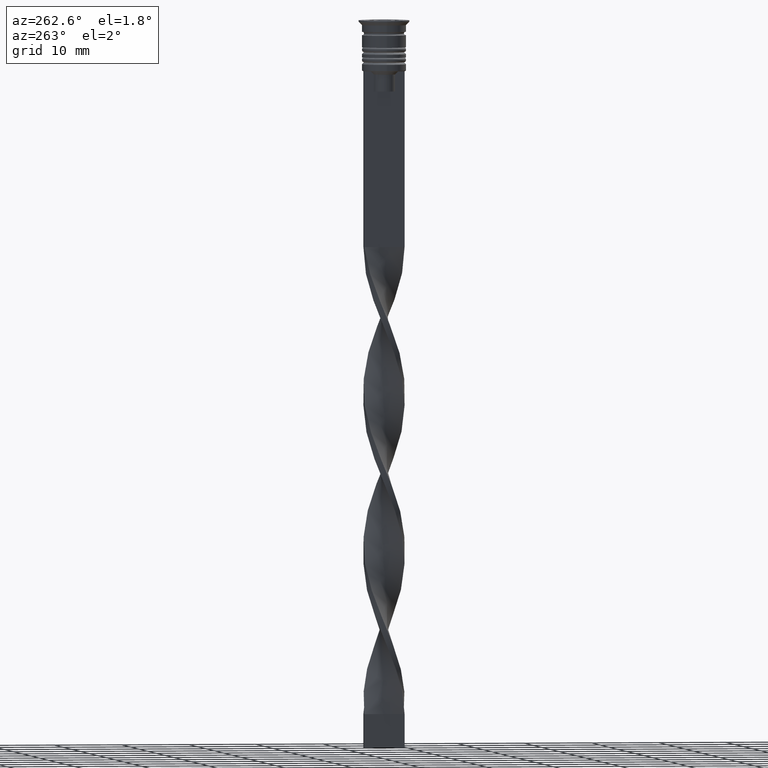
[diagram: clean part render]
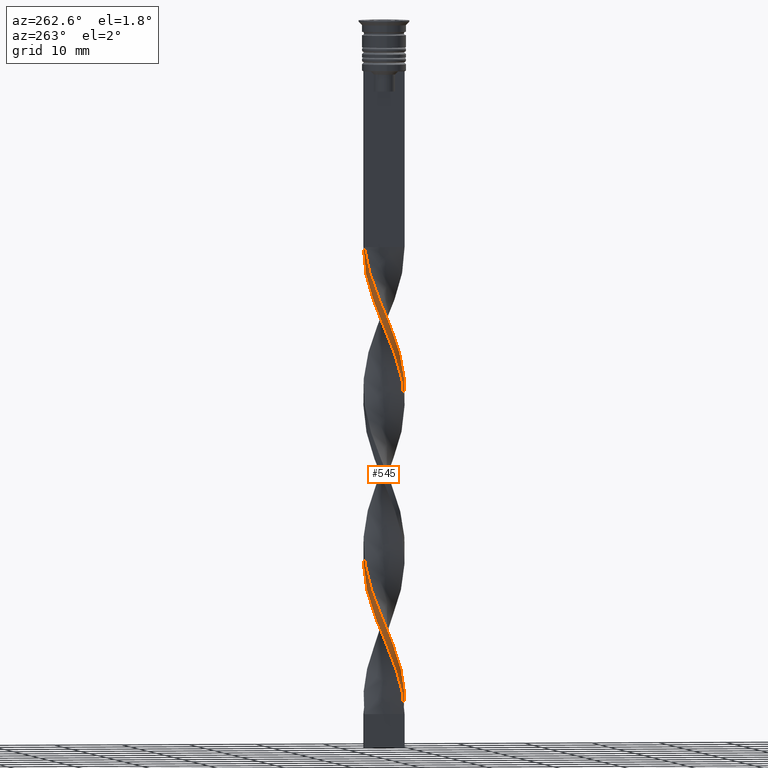
[diagram: same view with one face highlighted and labeled with its STEP entity id]
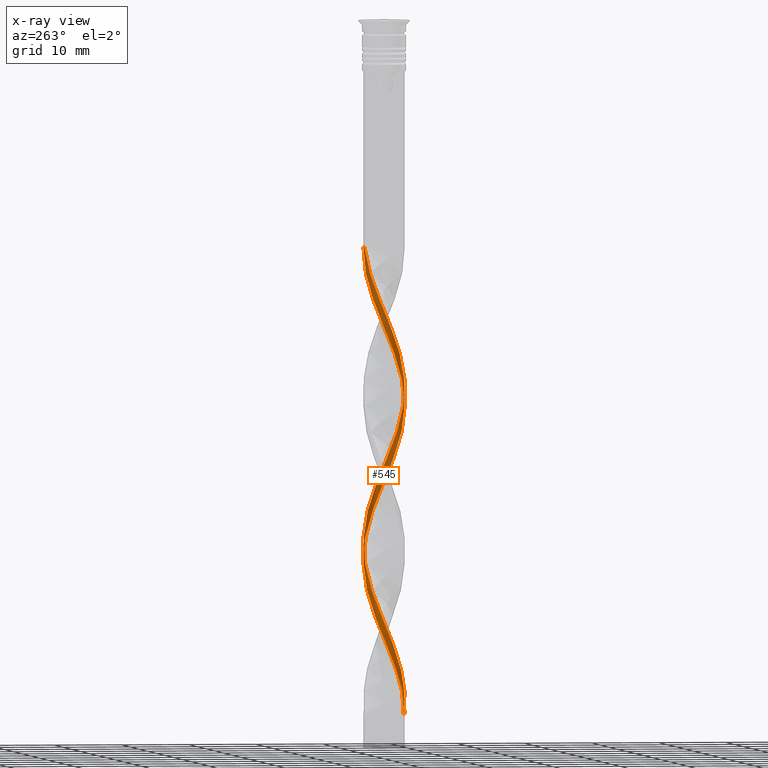
[diagram: x-ray of the same camera — body ghosted, the highlighted face saturated]
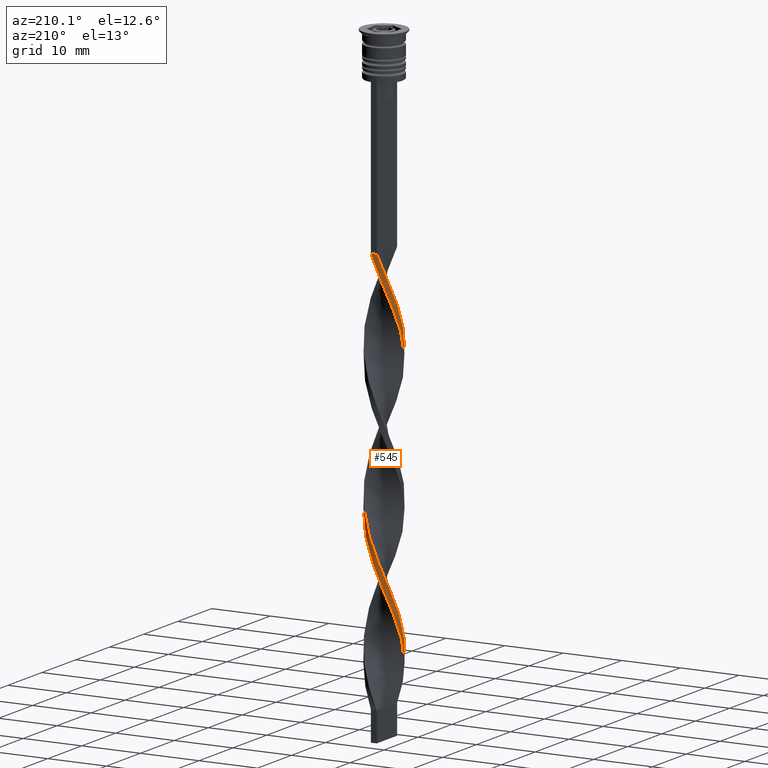
[diagram: same view with one face highlighted and labeled with its STEP entity id]
A machine part, auxiliary view. The second image highlights one B-rep face of the part: STEP entity #545.
The next image is the same camera in x-ray: the body ghosted, the highlighted face saturated — about 0% of this face is hidden behind the body in this view.
A second angle (auxiliary view) of the same face is appended — the face is thin or edge-on in the first view.
In plain terms, the highlighted face is a freeform B-spline surface patch.
Its self-contained STEP definition (entity closure, byte-faithful):
#1 = CARTESIAN_POINT ( 'NONE',  ( -2.813682533735953228, -1.212256617197150943, -92.76923076923075939 ) ) ;
#9 = CARTESIAN_POINT ( 'NONE',  ( -2.627746284534976606, 1.531322782470314836, -88.34615384615385381 ) ) ;
#18 = CARTESIAN_POINT ( 'NONE',  ( -2.917858282166500228, 0.8579644778149966289, -44.11538461538462030 ) ) ;
#31 =( BOUNDED_CURVE ( )  B_SPLINE_CURVE ( 2, ( #1935, #630, #2942, #2707, #865, #1915, #344, #74, #1383, #2208, #2927, #1413, #2173, #594, #1109, #1659, #917, #362, #95, #327, #2979, #2692, #2458, #2995, #2404, #1398, #144, #2155, #3193, #3231, #1128, #3176, #1625, #2442, #110, #125, #1951, #1161, #901, #2723, #1691, #393, #1430, #2223, #3246, #1967, #2285, #1756, #1984, #2300, #978, #2539, #3278, #3307, #2271, #3322, #681, #2806, #2253, #475, #1517, #219, #2553, #2029, #1742, #1729, #3012, #965, #931, #2522, #412, #1195, #171, #205, #998, #2016, #1256, #1241, #951 ),
 .UNSPECIFIED., .F., .T. ) 
 B_SPLINE_CURVE_WITH_KNOTS ( ( 3, 2, 2, 2, 2, 2, 2, 2, 2, 2, 2, 2, 2, 2, 2, 2, 2, 2, 2, 2, 2, 2, 2, 2, 2, 2, 2, 2, 2, 2, 2, 2, 2, 2, 2, 2, 2, 2, 2, 3 ),
 ( 0.000000000000000000, 0.01923076923076923184, 0.03846153846153846367, 0.05769230769230768857, 0.07692307692307692735, 0.09615384615384615918, 0.1153846153846153771, 0.1346153846153846090, 0.1538461538461538547, 0.1730769230769230449, 0.1923076923076923184, 0.2115384615384615363, 0.2307692307692307543, 0.2500000000000000000, 0.2692307692307692180, 0.2884615384615384359, 0.3076923076923077094, 0.3269230769230769273, 0.3461538461538460898, 0.3653846153846153633, 0.3846153846153846367, 0.4038461538461539102, 0.4230769230769230727, 0.4423076923076922906, 0.4615384615384615086, 0.4807692307692307820, 0.5000000000000000000, 0.5192307692307692735, 0.5384615384615384359, 0.5576923076923077094, 0.5769230769230768718, 0.5961538461538461453, 0.6153846153846154188, 0.6346153846153845812, 0.6538461538461538547, 0.6730769230769230171, 0.6923076923076921796, 0.7115384615384615641, 0.7307692307692307265, 0.7500000000000000000 ),
 .UNSPECIFIED. ) 
 CURVE ( )  GEOMETRIC_REPRESENTATION_ITEM ( )  RATIONAL_B_SPLINE_CURVE ( ( 1.000000000000000000, 0.9927088740980539727, 1.000000000000000000, 0.9927088740980539727, 1.000000000000000000, 0.9927088740980539727, 1.000000000000000000, 0.9927088740980539727, 1.000000000000000000, 0.9927088740980539727, 1.000000000000000000, 0.9927088740980539727, 1.000000000000000000, 0.9927088740980539727, 1.000000000000000000, 0.9927088740980539727, 1.000000000000000000, 0.9927088740980539727, 1.000000000000000000, 0.9927088740980539727, 1.000000000000000000, 0.9927088740980539727, 1.000000000000000000, 0.9927088740980539727, 1.000000000000000000, 0.9927088740980539727, 1.000000000000000000, 0.9927088740980539727, 1.000000000000000000, 0.9927088740980539727, 1.000000000000000000, 0.9927088740980539727, 1.000000000000000000, 0.9927088740980539727, 1.000000000000000000, 0.9927088740980539727, 1.000000000000000000, 0.9927088740980539727, 1.000000000000000000, 0.9927088740980539727, 1.000000000000000000, 0.9927088740980539727, 1.000000000000000000, 0.9927088740980539727, 1.000000000000000000, 0.9927088740980539727, 1.000000000000000000, 0.9927088740980539727, 1.000000000000000000, 0.9927088740980539727, 1.000000000000000000, 0.9927088740980539727, 1.000000000000000000, 0.9927088740980539727, 1.000000000000000000, 0.9927088740980539727, 1.000000000000000000, 0.9927088740980539727, 1.000000000000000000, 0.9927088740980539727, 1.000000000000000000, 0.9927088740980539727, 1.000000000000000000, 0.9927088740980539727, 1.000000000000000000, 0.9927088740980539727, 1.000000000000000000, 0.9927088740980539727, 1.000000000000000000, 0.9927088740980539727, 1.000000000000000000, 0.9927088740980539727, 1.000000000000000000, 0.9927088740980539727, 1.000000000000000000, 0.9927088740980539727, 1.000000000000000000, 0.9927088740980539727, 1.000000000000000000 ) ) 
 REPRESENTATION_ITEM ( '' )  );
#33 = CARTESIAN_POINT ( 'NONE',  ( -2.627746284534977050, -1.531322782470313948, -47.65384615384616041 ) ) ;
#39 = ORIENTED_EDGE ( 'NONE', *, *, #3143, .T. ) ;
#40 = CARTESIAN_POINT ( 'NONE',  ( 0.6006862186325140351, 3.004255577232739949, -76.84615384615386802 ) ) ;
#46 = CARTESIAN_POINT ( 'NONE',  ( -3.038394962421823386, 0.1347443962830582320, -45.88461538461538680 ) ) ;
#57 = CARTESIAN_POINT ( 'NONE',  ( -2.596021493184668572, -1.626975080790204364, -50.30769230769232081 ) ) ;
#63 = CARTESIAN_POINT ( 'NONE',  ( 2.917858282166500228, -0.8579644778149976281, -67.11538461538461320 ) ) ;
#66 = CARTESIAN_POINT ( 'NONE',  ( -1.203417901575699389, 2.793167620134377582, -35.26923076923077360 ) ) ;
#72 = CARTESIAN_POINT ( 'NONE',  ( -2.752983971046547129, -1.292702307246638815, -49.42307692307693401 ) ) ;
#74 = CARTESIAN_POINT ( 'NONE',  ( -2.596021493184668572, 1.626975080790205697, -39.69230769230769340 ) ) ;
#81 = CARTESIAN_POINT ( 'NONE',  ( -3.054755894246598658, -0.2341835458667257397, -46.76923076923077360 ) ) ;
#87 = CARTESIAN_POINT ( 'NONE',  ( 2.131225204431203668, -2.200966749995606708, -60.92307692307691980 ) ) ;
#93 = CARTESIAN_POINT ( 'NONE',  ( -0.9514415033047005643, 2.888729662981513790, -83.03846153846154721 ) ) ;
#95 = CARTESIAN_POINT ( 'NONE',  ( -2.184919224315391428, -2.115686173140295168, -49.42307692307693401 ) ) ;
#100 = CARTESIAN_POINT ( 'NONE',  ( -2.596021493184668572, -1.626975080790204586, -50.30769230769231370 ) ) ;
#108 = CARTESIAN_POINT ( 'NONE',  ( 2.752983971046547573, 1.292702307246638371, -72.42307692307691980 ) ) ;
#110 = CARTESIAN_POINT ( 'NONE',  ( 2.752983971046547129, -1.292702307246639482, -63.57692307692308731 ) ) ;
#114 = CARTESIAN_POINT ( 'NONE',  ( -3.022034030597048559, 0.5036723384328415376, -45.00000000000000711 ) ) ;
#123 = CARTESIAN_POINT ( 'NONE',  ( -0.6006862186325128139, 3.004255577232739949, -82.15384615384617462 ) ) ;
#125 = CARTESIAN_POINT ( 'NONE',  ( 2.909946448908425243, -0.9584295337030751538, -64.46153846153845279 ) ) ;
#129 = CARTESIAN_POINT ( 'NONE',  ( 0.1357340503332183368, 3.060710991611130360, -80.38461538461538680 ) ) ;
#144 = CARTESIAN_POINT ( 'NONE',  ( 0.4999999999999997780, -3.000000000000000000, -56.50000000000000711 ) ) ;
#171 = CARTESIAN_POINT ( 'NONE',  ( -1.615112600636835705, -2.577093573633700174, -97.19230769230770761 ) ) ;
#205 = CARTESIAN_POINT ( 'NONE',  ( -1.302196787976888537, -2.773203748730288076, -98.07692307692309441 ) ) ;
#219 = CARTESIAN_POINT ( 'NONE',  ( -2.909946448908426131, 0.9584295337030733775, -87.46153846153849543 ) ) ;
#228 = CARTESIAN_POINT ( 'NONE',  ( -2.917858282166500228, 0.8579644778149966289, -90.11538461538462741 ) ) ;
#239 = VERTEX_POINT ( 'NONE', #3068 ) ;
#241 = CARTESIAN_POINT ( 'NONE',  ( -2.184919224315390984, 2.115686173140295612, -40.57692307692308020 ) ) ;
#259 = CARTESIAN_POINT ( 'NONE',  ( 2.752983971046547129, -1.292702307246639482, -63.57692307692308731 ) ) ;
#267 = CARTESIAN_POINT ( 'NONE',  ( -2.917858282166500672, -0.8579644778149958517, -45.88461538461538680 ) ) ;
#272 = CARTESIAN_POINT ( 'NONE',  ( -2.627746284534977050, -1.531322782470313948, -93.65384615384617462 ) ) ;
#291 = CARTESIAN_POINT ( 'NONE',  ( -2.982351171577512172, 0.5963065397848998916, -88.34615384615385381 ) ) ;
#310 = CARTESIAN_POINT ( 'NONE',  ( -0.1357340503332168102, 3.060710991611130805, -78.61538461538461320 ) ) ;
#316 = CARTESIAN_POINT ( 'NONE',  ( 2.441810035333999540, -1.850388947743479173, -64.46153846153845279 ) ) ;
#325 = CARTESIAN_POINT ( 'NONE',  ( 1.615112600636834372, -2.577093573633701062, -61.80769230769231370 ) ) ;
#327 = CARTESIAN_POINT ( 'NONE',  ( -1.928028413296782206, -2.380983398537113160, -50.30769230769231370 ) ) ;
#335 = CARTESIAN_POINT ( 'NONE',  ( -1.302196787976888537, -2.773203748730288076, -52.07692307692308020 ) ) ;
#342 = CARTESIAN_POINT ( 'NONE',  ( -1.203417901575700277, -2.793167620134377138, -54.73076923076923350 ) ) ;
#344 = CARTESIAN_POINT ( 'NONE',  ( -2.363623348807935898, 1.913970915392905869, -38.80769230769230660 ) ) ;
#350 = CARTESIAN_POINT ( 'NONE',  ( -0.2324760841496473773, 3.032483284421934933, -35.26923076923077360 ) ) ;
#361 = CARTESIAN_POINT ( 'NONE',  ( 2.363623348807936786, 1.913970915392904315, -74.19230769230769340 ) ) ;
#362 = CARTESIAN_POINT ( 'NONE',  ( -2.441810035334000428, -1.850388947743477619, -48.53846153846154721 ) ) ;
#367 = CARTESIAN_POINT ( 'NONE',  ( -2.813682533735953228, 1.212256617197151165, -43.23076923076923350 ) ) ;
#375 = CARTESIAN_POINT ( 'NONE',  ( -2.363623348807936342, -1.913970915392904981, -51.19230769230769340 ) ) ;
#381 = CARTESIAN_POINT ( 'NONE',  ( 0.1357340503332183368, 3.060710991611130360, -34.38461538461538680 ) ) ;
#391 = CARTESIAN_POINT ( 'NONE',  ( -2.909946448908425243, -0.9584295337030731554, -94.53846153846153300 ) ) ;
#392 = CARTESIAN_POINT ( 'NONE',  ( 0.4999999999999997780, -3.000000000000000000, -102.5000000000000142 ) ) ;
#393 = CARTESIAN_POINT ( 'NONE',  ( 2.813682533735953673, 1.212256617197149833, -69.76923076923077360 ) ) ;
#412 = CARTESIAN_POINT ( 'NONE',  ( -2.184919224315391428, -2.115686173140295168, -95.42307692307693401 ) ) ;
#421 = ORIENTED_EDGE ( 'NONE', *, *, #2280, .F. ) ;
#475 = CARTESIAN_POINT ( 'NONE',  ( -2.596021493184668572, 1.626975080790205697, -85.69230769230770761 ) ) ;
#490 = CARTESIAN_POINT ( 'NONE',  ( 2.627746284534977050, 1.531322782470314392, -70.65384615384616041 ) ) ;
#511 = CARTESIAN_POINT ( 'NONE',  ( 2.596021493184667683, -1.626975080790206141, -62.69230769230770051 ) ) ;
#519 = CARTESIAN_POINT ( 'NONE',  ( -3.022034030597048559, -0.5036723384328413156, -45.00000000000000711 ) ) ;
#525 = CARTESIAN_POINT ( 'NONE',  ( -0.6006862186325128139, 3.004255577232739949, -36.15384615384615330 ) ) ;
#535 = CARTESIAN_POINT ( 'NONE',  ( -2.813682533735953228, -1.212256617197150943, -46.76923076923076650 ) ) ;
#541 = CARTESIAN_POINT ( 'NONE',  ( 1.302196787976888759, 2.773203748730288076, -75.07692307692308020 ) ) ;
#545 = ADVANCED_FACE ( 'NONE', ( #1287 ), #1307, .T. ) ;
#550 = CARTESIAN_POINT ( 'NONE',  ( -3.054755894246598658, -0.2341835458667257397, -92.76923076923077360 ) ) ;
#551 = CARTESIAN_POINT ( 'NONE',  ( -1.615112600636835705, -2.577093573633700174, -51.19230769230769340 ) ) ;
#558 = CARTESIAN_POINT ( 'NONE',  ( -3.022034030597048559, 0.5036723384328415376, -45.00000000000000711 ) ) ;
#566 = CARTESIAN_POINT ( 'NONE',  ( 1.302196787976888093, -2.773203748730288964, -60.92307692307692690 ) ) ;
#576 = CARTESIAN_POINT ( 'NONE',  ( 2.596021493184669904, 1.626975080790203032, -73.30769230769232081 ) ) ;
#582 = CARTESIAN_POINT ( 'NONE',  ( 2.363623348807936786, 1.913970915392904315, -74.19230769230769340 ) ) ;
#586 = CARTESIAN_POINT ( 'NONE',  ( -0.6006862186325138131, -3.004255577232739949, -53.84615384615384670 ) ) ;
#592 = CARTESIAN_POINT ( 'NONE',  ( -3.054755894246598658, -0.2341835458667257397, -92.76923076923075939 ) ) ;
#594 = CARTESIAN_POINT ( 'NONE',  ( -3.022034030597048559, -0.5036723384328413156, -45.00000000000000711 ) ) ;
#598 = CARTESIAN_POINT ( 'NONE',  ( 0.9514415033047005643, -2.888729662981513790, -60.03846153846154010 ) ) ;
#608 = CARTESIAN_POINT ( 'NONE',  ( 2.441810035333999540, -1.850388947743478951, -64.46153846153845279 ) ) ;
#615 = CARTESIAN_POINT ( 'NONE',  ( -0.9514415033047005643, 2.888729662981513790, -37.03846153846154010 ) ) ;
#628 = CARTESIAN_POINT ( 'NONE',  ( 1.302196787976887871, -2.773203748730288964, -60.92307692307691980 ) ) ;
#630 = CARTESIAN_POINT ( 'NONE',  ( -0.8642659496667818297, 2.939289008388869640, -34.38461538461538680 ) ) ;
#643 = CARTESIAN_POINT ( 'NONE',  ( 3.038394962421823386, -0.1347443962830599251, -68.88461538461538680 ) ) ;
#649 = CARTESIAN_POINT ( 'NONE',  ( 1.203417901575701610, 2.793167620134376250, -77.73076923076924061 ) ) ;
#660 = CARTESIAN_POINT ( 'NONE',  ( 0.4999999999999998890, 3.000000000000000000, -33.50000000000000000 ) ) ;
#681 = CARTESIAN_POINT ( 'NONE',  ( -1.836897528957910586, 2.424006490937745451, -83.03846153846154721 ) ) ;
#710 = VERTEX_POINT ( 'NONE', #1284 ) ;
#712 = CARTESIAN_POINT ( 'NONE',  ( 0.4999999999999998890, 3.000000000000000000, -33.50000000000000000 ) ) ;
#745 = CARTESIAN_POINT ( 'NONE',  ( 3.038394962421823831, 0.1347443962830564002, -67.11538461538461320 ) ) ;
#760 = CARTESIAN_POINT ( 'NONE',  ( 0.4999999999999998890, 3.000000000000000000, -33.50000000000000000 ) ) ;
#781 = CARTESIAN_POINT ( 'NONE',  ( 2.982351171577512616, -0.5963065397849001137, -65.34615384615385381 ) ) ;
#791 = CARTESIAN_POINT ( 'NONE',  ( -2.909946448908425687, 0.9584295337030733775, -41.46153846153846700 ) ) ;
#797 = CARTESIAN_POINT ( 'NONE',  ( -1.542569853484617060, 2.647046231879885081, -82.15384615384617462 ) ) ;
#805 = CARTESIAN_POINT ( 'NONE',  ( -1.203417901575700277, -2.793167620134377138, -100.7307692307692406 ) ) ;
#806 = CARTESIAN_POINT ( 'NONE',  ( -2.184919224315391428, -2.115686173140295168, -49.42307692307693401 ) ) ;
#814 = CARTESIAN_POINT ( 'NONE',  ( 2.909946448908424799, -0.9584295337030752648, -64.46153846153845279 ) ) ;
#820 = CARTESIAN_POINT ( 'NONE',  ( -0.8642659496667828289, -2.939289008388869640, -55.61538461538462741 ) ) ;
#830 = CARTESIAN_POINT ( 'NONE',  ( 0.6006862186325115927, -3.004255577232740393, -59.15384615384616041 ) ) ;
#838 = CARTESIAN_POINT ( 'NONE',  ( 3.054755894246598658, 0.2341835458667245740, -69.76923076923077360 ) ) ;
#844 = CARTESIAN_POINT ( 'NONE',  ( -1.836897528957910586, 2.424006490937745451, -37.03846153846154010 ) ) ;
#849 = CARTESIAN_POINT ( 'NONE',  ( 3.054755894246598658, 0.2341835458667246017, -69.76923076923077360 ) ) ;
#855 = CARTESIAN_POINT ( 'NONE',  ( -0.5000000000000002220, -3.000000000000000000, -56.50000000000000711 ) ) ;
#863 = CARTESIAN_POINT ( 'NONE',  ( -3.038394962421823386, 0.1347443962830582320, -91.88461538461540101 ) ) ;
#865 = CARTESIAN_POINT ( 'NONE',  ( -1.836897528957910586, 2.424006490937745451, -37.03846153846154010 ) ) ;
#887 = CARTESIAN_POINT ( 'NONE',  ( -2.131225204431204112, -2.200966749995605820, -52.07692307692308020 ) ) ;
#899 = CARTESIAN_POINT ( 'NONE',  ( 0.8642659496667831620, 2.939289008388869195, -78.61538461538461320 ) ) ;
#901 = CARTESIAN_POINT ( 'NONE',  ( 3.038394962421823831, 0.1347443962830564002, -67.11538461538461320 ) ) ;
#906 = CARTESIAN_POINT ( 'NONE',  ( -1.615112600636834816, 2.577093573633700618, -84.80769230769232081 ) ) ;
#917 = CARTESIAN_POINT ( 'NONE',  ( -2.627746284534977050, -1.531322782470313948, -47.65384615384616041 ) ) ;
#930 = CARTESIAN_POINT ( 'NONE',  ( -0.1666666666666669072, -3.000000000000000000, -102.5000000000000142 ) ) ;
#931 = CARTESIAN_POINT ( 'NONE',  ( -2.627746284534977050, -1.531322782470313948, -93.65384615384617462 ) ) ;
#951 = CARTESIAN_POINT ( 'NONE',  ( 0.4999999999999997780, -3.000000000000000000, -102.5000000000000142 ) ) ;
#965 = CARTESIAN_POINT ( 'NONE',  ( -2.813682533735953228, -1.212256617197150943, -92.76923076923077360 ) ) ;
#966 = VERTEX_POINT ( 'NONE', #2711 ) ;
#978 = CARTESIAN_POINT ( 'NONE',  ( 0.2324760841496499864, 3.032483284421934489, -77.73076923076924061 ) ) ;
#998 = CARTESIAN_POINT ( 'NONE',  ( -0.9514415033047011194, -2.888729662981513790, -98.96153846153848122 ) ) ;
#1002 = CARTESIAN_POINT ( 'NONE',  ( 1.928028413296783983, 2.380983398537111828, -73.30769230769232081 ) ) ;
#1016 = CARTESIAN_POINT ( 'NONE',  ( -3.054755894246598658, -0.2341835458667257397, -46.76923076923076650 ) ) ;
#1025 = CARTESIAN_POINT ( 'NONE',  ( -1.542569853484617726, -2.647046231879884193, -99.84615384615386802 ) ) ;
#1026 = CARTESIAN_POINT ( 'NONE',  ( -2.752983971046547129, 1.292702307246639482, -40.57692307692308020 ) ) ;
#1031 = CARTESIAN_POINT ( 'NONE',  ( -2.441810035334000428, -1.850388947743477397, -94.53846153846153300 ) ) ;
#1044 = VECTOR ( 'NONE', #2542, 1000.000000000000000 ) ;
#1054 = CARTESIAN_POINT ( 'NONE',  ( -2.363623348807935898, 1.913970915392905869, -84.80769230769232081 ) ) ;
#1073 = CARTESIAN_POINT ( 'NONE',  ( -0.9514415033047011194, -2.888729662981513790, -98.96153846153848122 ) ) ;
#1079 = CARTESIAN_POINT ( 'NONE',  ( -2.982351171577512616, -0.5963065397848991145, -47.65384615384616041 ) ) ;
#1087 = CARTESIAN_POINT ( 'NONE',  ( 1.203417901575701610, 2.793167620134376250, -77.73076923076924061 ) ) ;
#1095 = CARTESIAN_POINT ( 'NONE',  ( 3.022034030597048559, -0.5036723384328418707, -68.00000000000000000 ) ) ;
#1106 = CARTESIAN_POINT ( 'NONE',  ( -2.363623348807936342, -1.913970915392904981, -97.19230769230770761 ) ) ;
#1109 = CARTESIAN_POINT ( 'NONE',  ( -2.917858282166500672, -0.8579644778149958517, -45.88461538461538680 ) ) ;
#1115 = CARTESIAN_POINT ( 'NONE',  ( -1.542569853484617726, -2.647046231879884193, -53.84615384615384670 ) ) ;
#1121 = CARTESIAN_POINT ( 'NONE',  ( 0.1357340503332171988, -3.060710991611130360, -55.61538461538462741 ) ) ;
#1126 = CARTESIAN_POINT ( 'NONE',  ( -1.302196787976888093, 2.773203748730288520, -83.92307692307691980 ) ) ;
#1128 = CARTESIAN_POINT ( 'NONE',  ( 1.836897528957910586, -2.424006490937745451, -60.03846153846154010 ) ) ;
#1132 = CARTESIAN_POINT ( 'NONE',  ( -2.441810035334000872, 1.850388947743477841, -41.46153846153846700 ) ) ;
#1142 = CARTESIAN_POINT ( 'NONE',  ( -0.2324760841496473773, 3.032483284421934933, -81.26923076923077360 ) ) ;
#1148 = CARTESIAN_POINT ( 'NONE',  ( -0.6006862186325128139, 3.004255577232739949, -36.15384615384615330 ) ) ;
#1151 = EDGE_CURVE ( 'NONE', #2255, #239, #1520, .T. ) ;
#1159 = CARTESIAN_POINT ( 'NONE',  ( -1.542569853484617948, -2.647046231879884193, -53.84615384615384670 ) ) ;
#1161 = CARTESIAN_POINT ( 'NONE',  ( 3.054755894246598658, -0.2341835458667256287, -66.23076923076922640 ) ) ;
#1166 = CARTESIAN_POINT ( 'NONE',  ( -2.184919224315390984, 2.115686173140295612, -86.57692307692308020 ) ) ;
#1192 = EDGE_CURVE ( 'NONE', #239, #710, #31, .T. ) ;
#1195 = CARTESIAN_POINT ( 'NONE',  ( -1.928028413296782206, -2.380983398537113160, -96.30769230769232081 ) ) ;
#1241 = CARTESIAN_POINT ( 'NONE',  ( 0.1357340503332171711, -3.060710991611130360, -101.6153846153846274 ) ) ;
#1256 = CARTESIAN_POINT ( 'NONE',  ( -0.2324760841496483210, -3.032483284421934933, -100.7307692307692406 ) ) ;
#1278 = CARTESIAN_POINT ( 'NONE',  ( -2.813682533735953228, 1.212256617197151165, -43.23076923076922640 ) ) ;
#1284 = CARTESIAN_POINT ( 'NONE',  ( 0.4999999999999997780, -3.000000000000000000, -102.5000000000000142 ) ) ;
#1286 = CARTESIAN_POINT ( 'NONE',  ( -3.038394962421823386, 0.1347443962830582320, -91.88461538461540101 ) ) ;
#1287 = FACE_OUTER_BOUND ( 'NONE', #2739, .T. ) ;
#1294 = CARTESIAN_POINT ( 'NONE',  ( -2.596021493184668572, 1.626975080790205475, -85.69230769230770761 ) ) ;
#1302 = CARTESIAN_POINT ( 'NONE',  ( -0.8642659496667828289, -2.939289008388869640, -101.6153846153846274 ) ) ;
#1307 =( BOUNDED_SURFACE ( )  B_SPLINE_SURFACE ( 1, 2, ( 
 ( #3168, #2397, #66, #2094, #844, #2112, #3353, #2851, #1026, #791, #2074, #3097, #1820, #519, #267, #535, #33, #3133, #806, #1854, #551, #335, #1893, #586, #2667, #1121, #2920, #2166, #1633, #1373, #3186, #87, #2416, #511, #259, #814, #781, #2388, #745, #3105, #1557, #2837, #490, #2820, #3073, #1002, #2080, #541, #1588, #40, #1534, #310, #1330, #2374, #2874, #797, #2642, #2591, #1054, #1294, #2118, #2621, #291, #2607, #1792, #2335, #1860, #1, #272, #1031, #1830, #3087, #2571, #2064, #1073, #2322, #3124, #2857, #3344 ),
 ( #760, #1609, #3140, #525, #1573, #1309, #1845, #2050, #241, #2351, #2887, #1278, #18, #558, #1807, #1016, #2103, #1347, #72, #57, #375, #2925, #2705, #1159, #342, #1411, #2186, #2425, #1380, #830, #1675, #628, #325, #3174, #1949, #608, #2977, #1689, #2205, #1623, #643, #849, #1898, #1362, #108, #576, #361, #2171, #2940, #2153, #1087, #899, #2456, #2402, #1142, #123, #93, #1126, #3229, #1913, #2721, #3155, #1879, #2908, #2658, #3191, #863, #592, #2673, #391, #1657, #3207, #1106, #2690, #1640, #1396, #1428, #2133, #2440 ) ),
 .UNSPECIFIED., .F., .F., .F. ) 
 B_SPLINE_SURFACE_WITH_KNOTS ( ( 2, 2 ),
 ( 3, 2, 2, 2, 2, 2, 2, 2, 2, 2, 2, 2, 2, 2, 2, 2, 2, 2, 2, 2, 2, 2, 2, 2, 2, 2, 2, 2, 2, 2, 2, 2, 2, 2, 2, 2, 2, 2, 2, 3 ),
 ( 0.000000000000000000, 1.000000000000000000 ),
 ( 0.000000000000000000, 0.01923076923076923184, 0.03846153846153846367, 0.05769230769230769551, 0.07692307692307692735, 0.09615384615384615918, 0.1153846153846153910, 0.1346153846153846090, 0.1538461538461538547, 0.1730769230769230727, 0.1923076923076923184, 0.2115384615384615363, 0.2307692307692307820, 0.2500000000000000000, 0.2692307692307692180, 0.2884615384615384359, 0.3076923076923077094, 0.3269230769230769273, 0.3461538461538461453, 0.3653846153846153633, 0.3846153846153846367, 0.4038461538461538547, 0.4230769230769230727, 0.4423076923076922906, 0.4615384615384615641, 0.4807692307692307820, 0.5000000000000000000, 0.5192307692307692735, 0.5384615384615384359, 0.5576923076923077094, 0.5769230769230768718, 0.5961538461538461453, 0.6153846153846154188, 0.6346153846153845812, 0.6538461538461538547, 0.6730769230769231282, 0.6923076923076922906, 0.7115384615384615641, 0.7307692307692307265, 0.7500000000000000000 ),
 .UNSPECIFIED. ) 
 GEOMETRIC_REPRESENTATION_ITEM ( )  RATIONAL_B_SPLINE_SURFACE ( (
 ( 1.000000000000000000, 0.9927088740980539727, 1.000000000000000000, 0.9927088740980539727, 1.000000000000000000, 0.9927088740980539727, 1.000000000000000000, 0.9927088740980539727, 1.000000000000000000, 0.9927088740980539727, 1.000000000000000000, 0.9927088740980539727, 1.000000000000000000, 0.9927088740980539727, 1.000000000000000000, 0.9927088740980539727, 1.000000000000000000, 0.9927088740980539727, 1.000000000000000000, 0.9927088740980539727, 1.000000000000000000, 0.9927088740980539727, 1.000000000000000000, 0.9927088740980539727, 1.000000000000000000, 0.9927088740980539727, 1.000000000000000000, 0.9927088740980539727, 1.000000000000000000, 0.9927088740980539727, 1.000000000000000000, 0.9927088740980539727, 1.000000000000000000, 0.9927088740980539727, 1.000000000000000000, 0.9927088740980539727, 1.000000000000000000, 0.9927088740980539727, 1.000000000000000000, 0.9927088740980539727, 1.000000000000000000, 0.9927088740980539727, 1.000000000000000000, 0.9927088740980539727, 1.000000000000000000, 0.9927088740980539727, 1.000000000000000000, 0.9927088740980539727, 1.000000000000000000, 0.9927088740980539727, 1.000000000000000000, 0.9927088740980539727, 1.000000000000000000, 0.9927088740980539727, 1.000000000000000000, 0.9927088740980539727, 1.000000000000000000, 0.9927088740980539727, 1.000000000000000000, 0.9927088740980539727, 1.000000000000000000, 0.9927088740980539727, 1.000000000000000000, 0.9927088740980539727, 1.000000000000000000, 0.9927088740980539727, 1.000000000000000000, 0.9927088740980539727, 1.000000000000000000, 0.9927088740980539727, 1.000000000000000000, 0.9927088740980539727, 1.000000000000000000, 0.9927088740980539727, 1.000000000000000000, 0.9927088740980539727, 1.000000000000000000, 0.9927088740980539727, 1.000000000000000000),
 ( 1.000000000000000000, 0.9927088740980539727, 1.000000000000000000, 0.9927088740980539727, 1.000000000000000000, 0.9927088740980539727, 1.000000000000000000, 0.9927088740980539727, 1.000000000000000000, 0.9927088740980539727, 1.000000000000000000, 0.9927088740980539727, 1.000000000000000000, 0.9927088740980539727, 1.000000000000000000, 0.9927088740980539727, 1.000000000000000000, 0.9927088740980539727, 1.000000000000000000, 0.9927088740980539727, 1.000000000000000000, 0.9927088740980539727, 1.000000000000000000, 0.9927088740980539727, 1.000000000000000000, 0.9927088740980539727, 1.000000000000000000, 0.9927088740980539727, 1.000000000000000000, 0.9927088740980539727, 1.000000000000000000, 0.9927088740980539727, 1.000000000000000000, 0.9927088740980539727, 1.000000000000000000, 0.9927088740980539727, 1.000000000000000000, 0.9927088740980539727, 1.000000000000000000, 0.9927088740980539727, 1.000000000000000000, 0.9927088740980539727, 1.000000000000000000, 0.9927088740980539727, 1.000000000000000000, 0.9927088740980539727, 1.000000000000000000, 0.9927088740980539727, 1.000000000000000000, 0.9927088740980539727, 1.000000000000000000, 0.9927088740980539727, 1.000000000000000000, 0.9927088740980539727, 1.000000000000000000, 0.9927088740980539727, 1.000000000000000000, 0.9927088740980539727, 1.000000000000000000, 0.9927088740980539727, 1.000000000000000000, 0.9927088740980539727, 1.000000000000000000, 0.9927088740980539727, 1.000000000000000000, 0.9927088740980539727, 1.000000000000000000, 0.9927088740980539727, 1.000000000000000000, 0.9927088740980539727, 1.000000000000000000, 0.9927088740980539727, 1.000000000000000000, 0.9927088740980539727, 1.000000000000000000, 0.9927088740980539727, 1.000000000000000000, 0.9927088740980539727, 1.000000000000000000) ) ) 
 REPRESENTATION_ITEM ( '' )  SURFACE ( )  );
#1309 = CARTESIAN_POINT ( 'NONE',  ( -1.302196787976888093, 2.773203748730288520, -37.92307692307692690 ) ) ;
#1330 = CARTESIAN_POINT ( 'NONE',  ( -0.5000000000000001110, 3.000000000000000000, -79.50000000000001421 ) ) ;
#1347 = CARTESIAN_POINT ( 'NONE',  ( -2.909946448908425243, -0.9584295337030731554, -48.53846153846154010 ) ) ;
#1353 = CARTESIAN_POINT ( 'NONE',  ( 2.627746284534976606, -1.531322782470315058, -65.34615384615385381 ) ) ;
#1362 = CARTESIAN_POINT ( 'NONE',  ( 2.909946448908426131, 0.9584295337030716011, -71.53846153846154721 ) ) ;
#1368 = CARTESIAN_POINT ( 'NONE',  ( -1.302196787976888315, 2.773203748730288520, -37.92307692307692690 ) ) ;
#1373 = CARTESIAN_POINT ( 'NONE',  ( 1.542569853484615949, -2.647046231879885525, -59.15384615384616041 ) ) ;
#1380 = CARTESIAN_POINT ( 'NONE',  ( 0.2324760841496463504, -3.032483284421934933, -58.26923076923077360 ) ) ;
#1383 = CARTESIAN_POINT ( 'NONE',  ( -2.752983971046547129, 1.292702307246639482, -40.57692307692308020 ) ) ;
#1388 = CARTESIAN_POINT ( 'NONE',  ( 2.909946448908426575, 0.9584295337030716011, -71.53846153846154721 ) ) ;
#1396 = CARTESIAN_POINT ( 'NONE',  ( -1.542569853484617948, -2.647046231879884193, -99.84615384615385381 ) ) ;
#1398 = CARTESIAN_POINT ( 'NONE',  ( 0.1357340503332171711, -3.060710991611130360, -55.61538461538462741 ) ) ;
#1411 = CARTESIAN_POINT ( 'NONE',  ( -0.8642659496667827179, -2.939289008388869640, -55.61538461538462741 ) ) ;
#1413 = CARTESIAN_POINT ( 'NONE',  ( -3.054755894246598658, 0.2341835458667258507, -43.23076923076923350 ) ) ;
#1417 = CARTESIAN_POINT ( 'NONE',  ( -1.928028413296781762, 2.380983398537114049, -85.69230769230770761 ) ) ;
#1428 = CARTESIAN_POINT ( 'NONE',  ( -1.203417901575700277, -2.793167620134377138, -100.7307692307692406 ) ) ;
#1429 = CARTESIAN_POINT ( 'NONE',  ( 0.1666666666666664631, -3.000000000000000000, -102.5000000000000142 ) ) ;
#1430 = CARTESIAN_POINT ( 'NONE',  ( 2.627746284534977050, 1.531322782470314392, -70.65384615384616041 ) ) ;
#1443 =( BOUNDED_CURVE ( )  B_SPLINE_CURVE ( 2, ( #2947, #381, #350, #1148, #615, #1368, #2648, #1665, #3163, #1132, #2896, #367, #2697, #114, #46, #81, #1079, #2410, #2192, #100, #3214, #887, #2124, #1115, #3147, #820, #855, #1867, #1940, #1904, #598, #566, #1616, #1646, #2967, #316, #1353, #2394, #63, #1095, #2140, #838, #2680, #1388, #1887, #2914, #582, #1629, #2433, #1956, #649, #1695, #2462, #129, #3235, #2984, #2213, #2727, #906, #1417, #1166, #2561, #9, #1800, #228, #3067, #1286, #550, #3352, #3081, #2293, #2616, #2828, #2881, #1581, #1025, #805, #1302, #1599 ),
 .UNSPECIFIED., .F., .T. ) 
 B_SPLINE_CURVE_WITH_KNOTS ( ( 3, 2, 2, 2, 2, 2, 2, 2, 2, 2, 2, 2, 2, 2, 2, 2, 2, 2, 2, 2, 2, 2, 2, 2, 2, 2, 2, 2, 2, 2, 2, 2, 2, 2, 2, 2, 2, 2, 2, 3 ),
 ( 0.000000000000000000, 0.01923076923076923184, 0.03846153846153846367, 0.05769230769230768857, 0.07692307692307692735, 0.09615384615384615918, 0.1153846153846153771, 0.1346153846153846090, 0.1538461538461538547, 0.1730769230769230449, 0.1923076923076923184, 0.2115384615384615363, 0.2307692307692307543, 0.2500000000000000000, 0.2692307692307692180, 0.2884615384615384359, 0.3076923076923077094, 0.3269230769230769273, 0.3461538461538460898, 0.3653846153846153633, 0.3846153846153846367, 0.4038461538461539102, 0.4230769230769230727, 0.4423076923076922906, 0.4615384615384615086, 0.4807692307692307820, 0.5000000000000000000, 0.5192307692307692735, 0.5384615384615384359, 0.5576923076923077094, 0.5769230769230768718, 0.5961538461538461453, 0.6153846153846154188, 0.6346153846153845812, 0.6538461538461538547, 0.6730769230769230171, 0.6923076923076921796, 0.7115384615384615641, 0.7307692307692307265, 0.7500000000000000000 ),
 .UNSPECIFIED. ) 
 CURVE ( )  GEOMETRIC_REPRESENTATION_ITEM ( )  RATIONAL_B_SPLINE_CURVE ( ( 1.000000000000000000, 0.9927088740980539727, 1.000000000000000000, 0.9927088740980539727, 1.000000000000000000, 0.9927088740980539727, 1.000000000000000000, 0.9927088740980539727, 1.000000000000000000, 0.9927088740980539727, 1.000000000000000000, 0.9927088740980539727, 1.000000000000000000, 0.9927088740980539727, 1.000000000000000000, 0.9927088740980539727, 1.000000000000000000, 0.9927088740980539727, 1.000000000000000000, 0.9927088740980539727, 1.000000000000000000, 0.9927088740980539727, 1.000000000000000000, 0.9927088740980539727, 1.000000000000000000, 0.9927088740980539727, 1.000000000000000000, 0.9927088740980539727, 1.000000000000000000, 0.9927088740980539727, 1.000000000000000000, 0.9927088740980539727, 1.000000000000000000, 0.9927088740980539727, 1.000000000000000000, 0.9927088740980539727, 1.000000000000000000, 0.9927088740980539727, 1.000000000000000000, 0.9927088740980539727, 1.000000000000000000, 0.9927088740980539727, 1.000000000000000000, 0.9927088740980539727, 1.000000000000000000, 0.9927088740980539727, 1.000000000000000000, 0.9927088740980539727, 1.000000000000000000, 0.9927088740980539727, 1.000000000000000000, 0.9927088740980539727, 1.000000000000000000, 0.9927088740980539727, 1.000000000000000000, 0.9927088740980539727, 1.000000000000000000, 0.9927088740980539727, 1.000000000000000000, 0.9927088740980539727, 1.000000000000000000, 0.9927088740980539727, 1.000000000000000000, 0.9927088740980539727, 1.000000000000000000, 0.9927088740980539727, 1.000000000000000000, 0.9927088740980539727, 1.000000000000000000, 0.9927088740980539727, 1.000000000000000000, 0.9927088740980539727, 1.000000000000000000, 0.9927088740980539727, 1.000000000000000000, 0.9927088740980539727, 1.000000000000000000, 0.9927088740980539727, 1.000000000000000000 ) ) 
 REPRESENTATION_ITEM ( '' )  );
#1517 = CARTESIAN_POINT ( 'NONE',  ( -2.752983971046547129, 1.292702307246639482, -86.57692307692308020 ) ) ;
#1520 = LINE ( 'NONE', #712, #1044 ) ;
#1534 = CARTESIAN_POINT ( 'NONE',  ( 0.2324760841496499864, 3.032483284421934489, -77.73076923076924061 ) ) ;
#1557 = CARTESIAN_POINT ( 'NONE',  ( 2.917858282166500672, 0.8579644778149940754, -68.88461538461538680 ) ) ;
#1573 = CARTESIAN_POINT ( 'NONE',  ( -0.9514415033047005643, 2.888729662981513790, -37.03846153846154010 ) ) ;
#1581 = CARTESIAN_POINT ( 'NONE',  ( -1.836897528957911030, -2.424006490937745006, -98.96153846153848122 ) ) ;
#1588 = CARTESIAN_POINT ( 'NONE',  ( 0.9514415033047027848, 2.888729662981513346, -75.96153846153846700 ) ) ;
#1599 = CARTESIAN_POINT ( 'NONE',  ( -0.5000000000000002220, -3.000000000000000000, -102.5000000000000142 ) ) ;
#1609 = CARTESIAN_POINT ( 'NONE',  ( 0.1357340503332183645, 3.060710991611130360, -34.38461538461538680 ) ) ;
#1616 = CARTESIAN_POINT ( 'NONE',  ( 1.615112600636834372, -2.577093573633701062, -61.80769230769231370 ) ) ;
#1623 = CARTESIAN_POINT ( 'NONE',  ( 3.022034030597048559, -0.5036723384328418707, -68.00000000000000000 ) ) ;
#1625 = CARTESIAN_POINT ( 'NONE',  ( 2.363623348807935898, -1.913970915392906313, -61.80769230769231370 ) ) ;
#1629 = CARTESIAN_POINT ( 'NONE',  ( 2.131225204431204556, 2.200966749995605820, -75.07692307692308020 ) ) ;
#1633 = CARTESIAN_POINT ( 'NONE',  ( 1.203417901575698501, -2.793167620134377582, -58.26923076923077360 ) ) ;
#1640 = CARTESIAN_POINT ( 'NONE',  ( -1.836897528957911030, -2.424006490937745006, -98.96153846153848122 ) ) ;
#1646 = CARTESIAN_POINT ( 'NONE',  ( 1.928028413296780874, -2.380983398537114493, -62.69230769230770051 ) ) ;
#1657 = CARTESIAN_POINT ( 'NONE',  ( -2.752983971046547129, -1.292702307246638815, -95.42307692307693401 ) ) ;
#1659 = CARTESIAN_POINT ( 'NONE',  ( -2.813682533735953228, -1.212256617197150943, -46.76923076923077360 ) ) ;
#1665 = CARTESIAN_POINT ( 'NONE',  ( -1.928028413296781762, 2.380983398537114049, -39.69230769230769340 ) ) ;
#1675 = CARTESIAN_POINT ( 'NONE',  ( 0.9514415033047005643, -2.888729662981513790, -60.03846153846154010 ) ) ;
#1689 = CARTESIAN_POINT ( 'NONE',  ( 2.813682533735953228, -1.212256617197150721, -66.23076923076922640 ) ) ;
#1691 = CARTESIAN_POINT ( 'NONE',  ( 2.917858282166500672, 0.8579644778149940754, -68.88461538461538680 ) ) ;
#1695 = CARTESIAN_POINT ( 'NONE',  ( 0.8642659496667832730, 2.939289008388869195, -78.61538461538461320 ) ) ;
#1709 = CARTESIAN_POINT ( 'NONE',  ( -0.5000000000000002220, -3.000000000000000000, -102.5000000000000142 ) ) ;
#1729 = CARTESIAN_POINT ( 'NONE',  ( -3.022034030597048559, -0.5036723384328413156, -91.00000000000001421 ) ) ;
#1742 = CARTESIAN_POINT ( 'NONE',  ( -3.038394962421823831, -0.1347443962830574271, -90.11538461538462741 ) ) ;
#1756 = CARTESIAN_POINT ( 'NONE',  ( 1.302196787976888759, 2.773203748730288076, -75.07692307692308020 ) ) ;
#1792 = CARTESIAN_POINT ( 'NONE',  ( -3.038394962421823831, -0.1347443962830574271, -90.11538461538462741 ) ) ;
#1800 = CARTESIAN_POINT ( 'NONE',  ( -2.813682533735953228, 1.212256617197151165, -89.23076923076924061 ) ) ;
#1807 = CARTESIAN_POINT ( 'NONE',  ( -3.038394962421823386, 0.1347443962830582320, -45.88461538461538680 ) ) ;
#1820 = CARTESIAN_POINT ( 'NONE',  ( -3.038394962421823831, -0.1347443962830574271, -44.11538461538462030 ) ) ;
#1830 = CARTESIAN_POINT ( 'NONE',  ( -2.184919224315391428, -2.115686173140295168, -95.42307692307693401 ) ) ;
#1845 = CARTESIAN_POINT ( 'NONE',  ( -1.615112600636834816, 2.577093573633700618, -38.80769230769230660 ) ) ;
#1854 = CARTESIAN_POINT ( 'NONE',  ( -1.928028413296782206, -2.380983398537113160, -50.30769230769232081 ) ) ;
#1860 = CARTESIAN_POINT ( 'NONE',  ( -2.917858282166500672, -0.8579644778149958517, -91.88461538461540101 ) ) ;
#1867 = CARTESIAN_POINT ( 'NONE',  ( -0.1357340503332189752, -3.060710991611130360, -57.38461538461538680 ) ) ;
#1879 = CARTESIAN_POINT ( 'NONE',  ( -2.627746284534976606, 1.531322782470314836, -88.34615384615385381 ) ) ;
#1887 = CARTESIAN_POINT ( 'NONE',  ( 2.752983971046547573, 1.292702307246638371, -72.42307692307691980 ) ) ;
#1893 = CARTESIAN_POINT ( 'NONE',  ( -0.9514415033047011194, -2.888729662981513790, -52.96153846153845990 ) ) ;
#1898 = CARTESIAN_POINT ( 'NONE',  ( 2.982351171577512616, 0.5963065397848995586, -70.65384615384616041 ) ) ;
#1904 = CARTESIAN_POINT ( 'NONE',  ( 0.6006862186325115927, -3.004255577232740393, -59.15384615384616041 ) ) ;
#1913 = CARTESIAN_POINT ( 'NONE',  ( -1.928028413296781762, 2.380983398537113604, -85.69230769230770761 ) ) ;
#1915 = CARTESIAN_POINT ( 'NONE',  ( -2.131225204431204112, 2.200966749995606264, -37.92307692307692690 ) ) ;
#1935 = CARTESIAN_POINT ( 'NONE',  ( -0.5000000000000001110, 3.000000000000000000, -33.50000000000000000 ) ) ;
#1940 = CARTESIAN_POINT ( 'NONE',  ( 0.2324760841496463504, -3.032483284421934933, -58.26923076923077360 ) ) ;
#1949 = CARTESIAN_POINT ( 'NONE',  ( 2.184919224315390984, -2.115686173140295612, -63.57692307692308731 ) ) ;
#1951 = CARTESIAN_POINT ( 'NONE',  ( 2.982351171577512616, -0.5963065397849001137, -65.34615384615385381 ) ) ;
#1956 = CARTESIAN_POINT ( 'NONE',  ( 1.542569853484617948, 2.647046231879884193, -76.84615384615386802 ) ) ;
#1967 = CARTESIAN_POINT ( 'NONE',  ( 1.928028413296783983, 2.380983398537111828, -73.30769230769232081 ) ) ;
#1984 = CARTESIAN_POINT ( 'NONE',  ( 0.9514415033047027848, 2.888729662981513346, -75.96153846153846700 ) ) ;
#2016 = CARTESIAN_POINT ( 'NONE',  ( -0.6006862186325138131, -3.004255577232739949, -99.84615384615386802 ) ) ;
#2029 = CARTESIAN_POINT ( 'NONE',  ( -3.054755894246598658, 0.2341835458667258507, -89.23076923076924061 ) ) ;
#2050 = CARTESIAN_POINT ( 'NONE',  ( -1.928028413296781762, 2.380983398537113604, -39.69230769230769340 ) ) ;
#2064 = CARTESIAN_POINT ( 'NONE',  ( -1.302196787976888537, -2.773203748730288076, -98.07692307692308020 ) ) ;
#2074 = CARTESIAN_POINT ( 'NONE',  ( -2.982351171577512172, 0.5963065397848998916, -42.34615384615385381 ) ) ;
#2080 = CARTESIAN_POINT ( 'NONE',  ( 1.615112600636836149, 2.577093573633699730, -74.19230769230769340 ) ) ;
#2094 = CARTESIAN_POINT ( 'NONE',  ( -1.542569853484617060, 2.647046231879885081, -36.15384615384615330 ) ) ;
#2103 = CARTESIAN_POINT ( 'NONE',  ( -2.982351171577512616, -0.5963065397848991145, -47.65384615384616041 ) ) ;
#2112 = CARTESIAN_POINT ( 'NONE',  ( -2.131225204431204112, 2.200966749995606264, -37.92307692307692690 ) ) ;
#2118 = CARTESIAN_POINT ( 'NONE',  ( -2.752983971046547129, 1.292702307246639482, -86.57692307692308020 ) ) ;
#2124 = CARTESIAN_POINT ( 'NONE',  ( -1.836897528957911030, -2.424006490937745006, -52.96153846153845990 ) ) ;
#2133 = CARTESIAN_POINT ( 'NONE',  ( -0.8642659496667827179, -2.939289008388869640, -101.6153846153846132 ) ) ;
#2140 = CARTESIAN_POINT ( 'NONE',  ( 3.038394962421823386, -0.1347443962830599251, -68.88461538461538680 ) ) ;
#2153 = CARTESIAN_POINT ( 'NONE',  ( 1.542569853484618170, 2.647046231879884193, -76.84615384615386802 ) ) ;
#2155 = CARTESIAN_POINT ( 'NONE',  ( 0.8642659496667811636, -2.939289008388869640, -57.38461538461538680 ) ) ;
#2166 = CARTESIAN_POINT ( 'NONE',  ( 0.8642659496667812746, -2.939289008388869640, -57.38461538461538680 ) ) ;
#2171 = CARTESIAN_POINT ( 'NONE',  ( 2.131225204431204556, 2.200966749995605820, -75.07692307692308020 ) ) ;
#2173 = CARTESIAN_POINT ( 'NONE',  ( -3.038394962421823831, -0.1347443962830574271, -44.11538461538462030 ) ) ;
#2186 = CARTESIAN_POINT ( 'NONE',  ( -0.5000000000000002220, -3.000000000000000000, -56.50000000000000711 ) ) ;
#2192 = CARTESIAN_POINT ( 'NONE',  ( -2.752983971046547129, -1.292702307246638815, -49.42307692307693401 ) ) ;
#2205 = CARTESIAN_POINT ( 'NONE',  ( 2.917858282166500228, -0.8579644778149976281, -67.11538461538461320 ) ) ;
#2208 = CARTESIAN_POINT ( 'NONE',  ( -2.909946448908426131, 0.9584295337030733775, -41.46153846153846700 ) ) ;
#2213 = CARTESIAN_POINT ( 'NONE',  ( -0.9514415033047005643, 2.888729662981513790, -83.03846153846154721 ) ) ;
#2223 = CARTESIAN_POINT ( 'NONE',  ( 2.441810035334001761, 1.850388947743476509, -71.53846153846154721 ) ) ;
#2238 = ORIENTED_EDGE ( 'NONE', *, *, #1192, .F. ) ;
#2253 = CARTESIAN_POINT ( 'NONE',  ( -2.363623348807935898, 1.913970915392905869, -84.80769230769232081 ) ) ;
#2255 = VERTEX_POINT ( 'NONE', #660 ) ;
#2271 = CARTESIAN_POINT ( 'NONE',  ( -1.203417901575699389, 2.793167620134377582, -81.26923076923077360 ) ) ;
#2280 = EDGE_CURVE ( 'NONE', #710, #966, #2970, .T. ) ;
#2285 = CARTESIAN_POINT ( 'NONE',  ( 1.615112600636836149, 2.577093573633699730, -74.19230769230769340 ) ) ;
#2293 = CARTESIAN_POINT ( 'NONE',  ( -2.752983971046547129, -1.292702307246638815, -95.42307692307693401 ) ) ;
#2300 = CARTESIAN_POINT ( 'NONE',  ( 0.6006862186325140351, 3.004255577232739949, -76.84615384615386802 ) ) ;
#2322 = CARTESIAN_POINT ( 'NONE',  ( -0.6006862186325138131, -3.004255577232739949, -99.84615384615385381 ) ) ;
#2335 = CARTESIAN_POINT ( 'NONE',  ( -3.022034030597048559, -0.5036723384328413156, -91.00000000000001421 ) ) ;
#2351 = CARTESIAN_POINT ( 'NONE',  ( -2.441810035334000872, 1.850388947743477619, -41.46153846153846700 ) ) ;
#2374 = CARTESIAN_POINT ( 'NONE',  ( -0.8642659496667818297, 2.939289008388869640, -80.38461538461538680 ) ) ;
#2388 = CARTESIAN_POINT ( 'NONE',  ( 3.054755894246598658, -0.2341835458667256287, -66.23076923076922640 ) ) ;
#2394 = CARTESIAN_POINT ( 'NONE',  ( 2.813682533735953228, -1.212256617197150721, -66.23076923076922640 ) ) ;
#2397 = CARTESIAN_POINT ( 'NONE',  ( -0.8642659496667818297, 2.939289008388869640, -34.38461538461538680 ) ) ;
#2402 = CARTESIAN_POINT ( 'NONE',  ( 0.1357340503332183645, 3.060710991611130360, -80.38461538461538680 ) ) ;
#2404 = CARTESIAN_POINT ( 'NONE',  ( -0.2324760841496483210, -3.032483284421934933, -54.73076923076923350 ) ) ;
#2410 = CARTESIAN_POINT ( 'NONE',  ( -2.909946448908425687, -0.9584295337030731554, -48.53846153846154721 ) ) ;
#2416 = CARTESIAN_POINT ( 'NONE',  ( 2.363623348807935898, -1.913970915392906313, -61.80769230769231370 ) ) ;
#2425 = CARTESIAN_POINT ( 'NONE',  ( -0.1357340503332189474, -3.060710991611130360, -57.38461538461538680 ) ) ;
#2433 = CARTESIAN_POINT ( 'NONE',  ( 1.836897528957912362, 2.424006490937744118, -75.96153846153846700 ) ) ;
#2440 = CARTESIAN_POINT ( 'NONE',  ( -0.5000000000000002220, -3.000000000000000000, -102.5000000000000142 ) ) ;
#2442 = CARTESIAN_POINT ( 'NONE',  ( 2.596021493184667683, -1.626975080790206141, -62.69230769230770051 ) ) ;
#2456 = CARTESIAN_POINT ( 'NONE',  ( 0.4999999999999998890, 3.000000000000000000, -79.50000000000001421 ) ) ;
#2458 = CARTESIAN_POINT ( 'NONE',  ( -0.9514415033047011194, -2.888729662981513790, -52.96153846153845990 ) ) ;
#2462 = CARTESIAN_POINT ( 'NONE',  ( 0.4999999999999998890, 3.000000000000000000, -79.50000000000001421 ) ) ;
#2522 = CARTESIAN_POINT ( 'NONE',  ( -2.441810035334000428, -1.850388947743477619, -94.53846153846154721 ) ) ;
#2539 = CARTESIAN_POINT ( 'NONE',  ( -0.1357340503332168102, 3.060710991611130805, -78.61538461538461320 ) ) ;
#2542 = DIRECTION ( 'NONE',  ( -1.000000000000000000, 0.000000000000000000, 0.000000000000000000 ) ) ;
#2553 = CARTESIAN_POINT ( 'NONE',  ( -2.982351171577512172, 0.5963065397848998916, -88.34615384615385381 ) ) ;
#2561 = CARTESIAN_POINT ( 'NONE',  ( -2.441810035334000872, 1.850388947743477841, -87.46153846153849543 ) ) ;
#2571 = CARTESIAN_POINT ( 'NONE',  ( -1.615112600636835705, -2.577093573633700174, -97.19230769230770761 ) ) ;
#2591 = CARTESIAN_POINT ( 'NONE',  ( -2.131225204431204112, 2.200966749995606264, -83.92307692307691980 ) ) ;
#2607 = CARTESIAN_POINT ( 'NONE',  ( -3.054755894246598658, 0.2341835458667258230, -89.23076923076922640 ) ) ;
#2616 = CARTESIAN_POINT ( 'NONE',  ( -2.596021493184668572, -1.626975080790204586, -96.30769230769232081 ) ) ;
#2621 = CARTESIAN_POINT ( 'NONE',  ( -2.909946448908425687, 0.9584295337030733775, -87.46153846153849543 ) ) ;
#2642 = CARTESIAN_POINT ( 'NONE',  ( -1.836897528957910586, 2.424006490937745451, -83.03846153846154721 ) ) ;
#2648 = CARTESIAN_POINT ( 'NONE',  ( -1.615112600636834816, 2.577093573633700618, -38.80769230769230660 ) ) ;
#2658 = CARTESIAN_POINT ( 'NONE',  ( -2.917858282166500228, 0.8579644778149966289, -90.11538461538462741 ) ) ;
#2667 = CARTESIAN_POINT ( 'NONE',  ( -0.2324760841496483210, -3.032483284421934933, -54.73076923076923350 ) ) ;
#2673 = CARTESIAN_POINT ( 'NONE',  ( -2.982351171577512616, -0.5963065397848991145, -93.65384615384617462 ) ) ;
#2680 = CARTESIAN_POINT ( 'NONE',  ( 2.982351171577512616, 0.5963065397848995586, -70.65384615384616041 ) ) ;
#2690 = CARTESIAN_POINT ( 'NONE',  ( -2.131225204431204112, -2.200966749995605820, -98.07692307692308020 ) ) ;
#2692 = CARTESIAN_POINT ( 'NONE',  ( -1.302196787976888537, -2.773203748730288076, -52.07692307692308020 ) ) ;
#2697 = CARTESIAN_POINT ( 'NONE',  ( -2.917858282166500228, 0.8579644778149966289, -44.11538461538462030 ) ) ;
#2705 = CARTESIAN_POINT ( 'NONE',  ( -1.836897528957911030, -2.424006490937745006, -52.96153846153845990 ) ) ;
#2707 = CARTESIAN_POINT ( 'NONE',  ( -1.542569853484617060, 2.647046231879885081, -36.15384615384615330 ) ) ;
#2711 = CARTESIAN_POINT ( 'NONE',  ( -0.5000000000000002220, -3.000000000000000000, -102.5000000000000142 ) ) ;
#2721 = CARTESIAN_POINT ( 'NONE',  ( -2.184919224315390984, 2.115686173140295612, -86.57692307692308020 ) ) ;
#2723 = CARTESIAN_POINT ( 'NONE',  ( 3.022034030597048559, 0.5036723384328409825, -68.00000000000000000 ) ) ;
#2727 = CARTESIAN_POINT ( 'NONE',  ( -1.302196787976888315, 2.773203748730288520, -83.92307692307693401 ) ) ;
#2739 = EDGE_LOOP ( 'NONE', ( #3049, #39, #421, #2238 ) ) ;
#2806 = CARTESIAN_POINT ( 'NONE',  ( -2.131225204431204112, 2.200966749995606264, -83.92307692307693401 ) ) ;
#2820 = CARTESIAN_POINT ( 'NONE',  ( 2.441810035334001761, 1.850388947743476509, -71.53846153846154721 ) ) ;
#2828 = CARTESIAN_POINT ( 'NONE',  ( -2.363623348807936342, -1.913970915392904981, -97.19230769230770761 ) ) ;
#2837 = CARTESIAN_POINT ( 'NONE',  ( 2.813682533735953673, 1.212256617197149833, -69.76923076923077360 ) ) ;
#2851 = CARTESIAN_POINT ( 'NONE',  ( -2.596021493184668572, 1.626975080790205475, -39.69230769230769340 ) ) ;
#2857 = CARTESIAN_POINT ( 'NONE',  ( 0.1357340503332171988, -3.060710991611130360, -101.6153846153846132 ) ) ;
#2874 = CARTESIAN_POINT ( 'NONE',  ( -1.203417901575699389, 2.793167620134377582, -81.26923076923077360 ) ) ;
#2881 = CARTESIAN_POINT ( 'NONE',  ( -2.131225204431204112, -2.200966749995605820, -98.07692307692309441 ) ) ;
#2887 = CARTESIAN_POINT ( 'NONE',  ( -2.627746284534976606, 1.531322782470314836, -42.34615384615385381 ) ) ;
#2896 = CARTESIAN_POINT ( 'NONE',  ( -2.627746284534976606, 1.531322782470314836, -42.34615384615385381 ) ) ;
#2908 = CARTESIAN_POINT ( 'NONE',  ( -2.813682533735953228, 1.212256617197151165, -89.23076923076922640 ) ) ;
#2914 = CARTESIAN_POINT ( 'NONE',  ( 2.596021493184669904, 1.626975080790203032, -73.30769230769232081 ) ) ;
#2920 = CARTESIAN_POINT ( 'NONE',  ( 0.4999999999999997780, -3.000000000000000000, -56.50000000000000711 ) ) ;
#2925 = CARTESIAN_POINT ( 'NONE',  ( -2.131225204431204112, -2.200966749995605820, -52.07692307692308020 ) ) ;
#2927 = CARTESIAN_POINT ( 'NONE',  ( -2.982351171577512172, 0.5963065397848998916, -42.34615384615385381 ) ) ;
#2940 = CARTESIAN_POINT ( 'NONE',  ( 1.836897528957912362, 2.424006490937744118, -75.96153846153846700 ) ) ;
#2942 = CARTESIAN_POINT ( 'NONE',  ( -1.203417901575699389, 2.793167620134377582, -35.26923076923077360 ) ) ;
#2947 = CARTESIAN_POINT ( 'NONE',  ( 0.4999999999999998890, 3.000000000000000000, -33.50000000000000000 ) ) ;
#2967 = CARTESIAN_POINT ( 'NONE',  ( 2.184919224315390984, -2.115686173140295612, -63.57692307692308731 ) ) ;
#2970 = B_SPLINE_CURVE_WITH_KNOTS ( 'NONE', 3,
 ( #392, #1429, #930, #1709 ),
 .UNSPECIFIED., .F., .F.,
 ( 4, 4 ),
 ( 0.000000000000000000, 1.000000000000000000 ),
 .UNSPECIFIED. ) ;
#2977 = CARTESIAN_POINT ( 'NONE',  ( 2.627746284534976606, -1.531322782470315058, -65.34615384615385381 ) ) ;
#2979 = CARTESIAN_POINT ( 'NONE',  ( -1.615112600636835705, -2.577093573633700174, -51.19230769230769340 ) ) ;
#2984 = CARTESIAN_POINT ( 'NONE',  ( -0.6006862186325128139, 3.004255577232739949, -82.15384615384617462 ) ) ;
#2995 = CARTESIAN_POINT ( 'NONE',  ( -0.6006862186325138131, -3.004255577232739949, -53.84615384615384670 ) ) ;
#3012 = CARTESIAN_POINT ( 'NONE',  ( -2.917858282166500672, -0.8579644778149958517, -91.88461538461540101 ) ) ;
#3049 = ORIENTED_EDGE ( 'NONE', *, *, #1151, .F. ) ;
#3067 = CARTESIAN_POINT ( 'NONE',  ( -3.022034030597048559, 0.5036723384328415376, -91.00000000000001421 ) ) ;
#3068 = CARTESIAN_POINT ( 'NONE',  ( -0.5000000000000001110, 3.000000000000000000, -33.50000000000000000 ) ) ;
#3073 = CARTESIAN_POINT ( 'NONE',  ( 2.184919224315392317, 2.115686173140294724, -72.42307692307691980 ) ) ;
#3081 = CARTESIAN_POINT ( 'NONE',  ( -2.909946448908425687, -0.9584295337030731554, -94.53846153846154721 ) ) ;
#3087 = CARTESIAN_POINT ( 'NONE',  ( -1.928028413296782206, -2.380983398537113160, -96.30769230769232081 ) ) ;
#3097 = CARTESIAN_POINT ( 'NONE',  ( -3.054755894246598658, 0.2341835458667258230, -43.23076923076922640 ) ) ;
#3105 = CARTESIAN_POINT ( 'NONE',  ( 3.022034030597048559, 0.5036723384328409825, -68.00000000000000000 ) ) ;
#3124 = CARTESIAN_POINT ( 'NONE',  ( -0.2324760841496483210, -3.032483284421934933, -100.7307692307692406 ) ) ;
#3133 = CARTESIAN_POINT ( 'NONE',  ( -2.441810035334000428, -1.850388947743477397, -48.53846153846154010 ) ) ;
#3140 = CARTESIAN_POINT ( 'NONE',  ( -0.2324760841496473773, 3.032483284421934933, -35.26923076923077360 ) ) ;
#3143 = EDGE_CURVE ( 'NONE', #2255, #966, #1443, .T. ) ;
#3147 = CARTESIAN_POINT ( 'NONE',  ( -1.203417901575700277, -2.793167620134377138, -54.73076923076923350 ) ) ;
#3155 = CARTESIAN_POINT ( 'NONE',  ( -2.441810035334000872, 1.850388947743477619, -87.46153846153849543 ) ) ;
#3163 = CARTESIAN_POINT ( 'NONE',  ( -2.184919224315390984, 2.115686173140295612, -40.57692307692308020 ) ) ;
#3168 = CARTESIAN_POINT ( 'NONE',  ( -0.5000000000000001110, 3.000000000000000000, -33.50000000000000000 ) ) ;
#3174 = CARTESIAN_POINT ( 'NONE',  ( 1.928028413296780874, -2.380983398537114049, -62.69230769230770051 ) ) ;
#3176 = CARTESIAN_POINT ( 'NONE',  ( 2.131225204431203668, -2.200966749995606708, -60.92307692307692690 ) ) ;
#3186 = CARTESIAN_POINT ( 'NONE',  ( 1.836897528957910586, -2.424006490937745451, -60.03846153846154010 ) ) ;
#3191 = CARTESIAN_POINT ( 'NONE',  ( -3.022034030597048559, 0.5036723384328415376, -91.00000000000001421 ) ) ;
#3193 = CARTESIAN_POINT ( 'NONE',  ( 1.203417901575698501, -2.793167620134377582, -58.26923076923077360 ) ) ;
#3207 = CARTESIAN_POINT ( 'NONE',  ( -2.596021493184668572, -1.626975080790204364, -96.30769230769232081 ) ) ;
#3214 = CARTESIAN_POINT ( 'NONE',  ( -2.363623348807936342, -1.913970915392904981, -51.19230769230769340 ) ) ;
#3229 = CARTESIAN_POINT ( 'NONE',  ( -1.615112600636834816, 2.577093573633700618, -84.80769230769232081 ) ) ;
#3231 = CARTESIAN_POINT ( 'NONE',  ( 1.542569853484615949, -2.647046231879885525, -59.15384615384616041 ) ) ;
#3235 = CARTESIAN_POINT ( 'NONE',  ( -0.2324760841496473773, 3.032483284421934933, -81.26923076923077360 ) ) ;
#3246 = CARTESIAN_POINT ( 'NONE',  ( 2.184919224315392317, 2.115686173140294724, -72.42307692307691980 ) ) ;
#3278 = CARTESIAN_POINT ( 'NONE',  ( -0.5000000000000001110, 3.000000000000000000, -79.50000000000001421 ) ) ;
#3307 = CARTESIAN_POINT ( 'NONE',  ( -0.8642659496667818297, 2.939289008388869640, -80.38461538461538680 ) ) ;
#3322 = CARTESIAN_POINT ( 'NONE',  ( -1.542569853484617060, 2.647046231879885081, -82.15384615384617462 ) ) ;
#3344 = CARTESIAN_POINT ( 'NONE',  ( 0.4999999999999997780, -3.000000000000000000, -102.5000000000000142 ) ) ;
#3352 = CARTESIAN_POINT ( 'NONE',  ( -2.982351171577512616, -0.5963065397848991145, -93.65384615384617462 ) ) ;
#3353 = CARTESIAN_POINT ( 'NONE',  ( -2.363623348807935898, 1.913970915392905869, -38.80769230769230660 ) ) ;